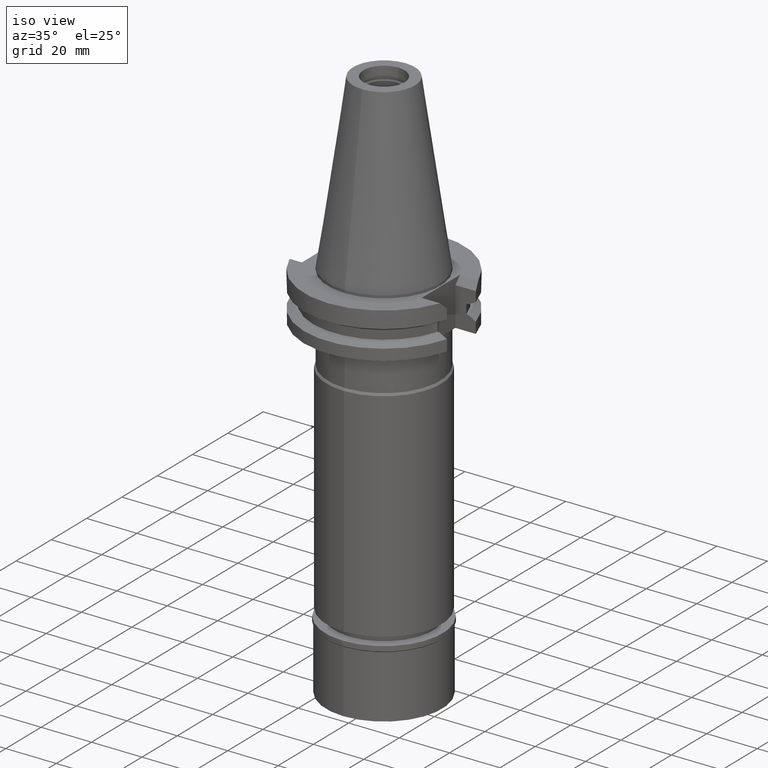
[diagram: clean part render]
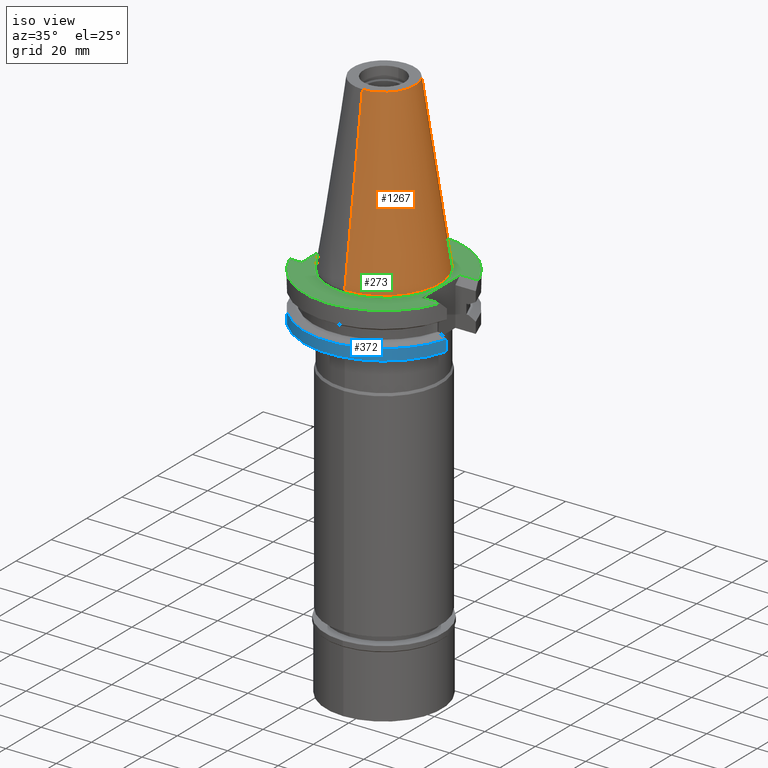
[diagram: same view with three faces highlighted in distinct colors, each labeled with its STEP entity id]
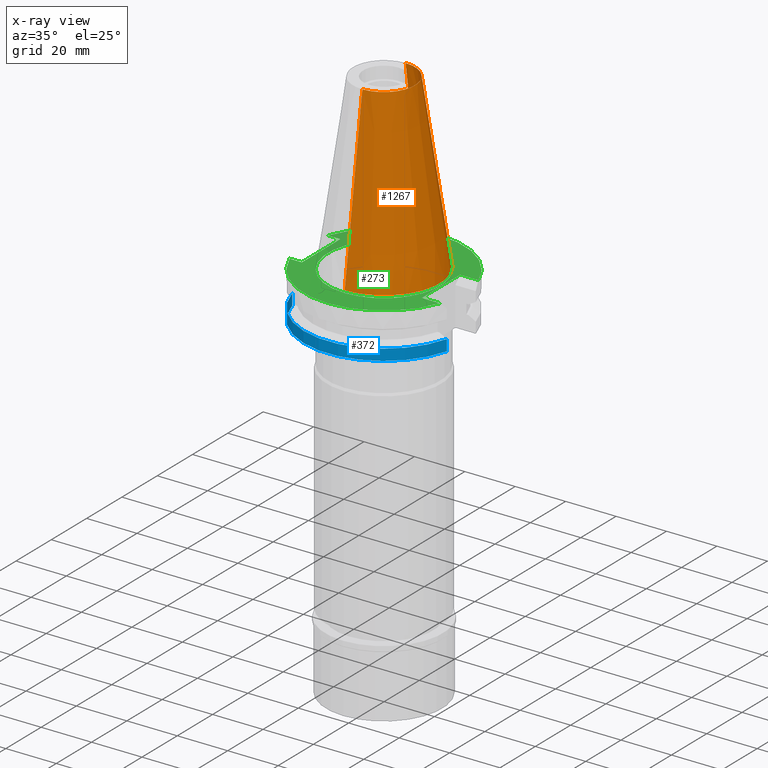
[diagram: x-ray of the same camera — body ghosted, the three highlighted faces saturated]
A machine part, iso view with three faces highlighted in distinct colors.
The next image is the same camera in x-ray (body ghosted, the three faces saturated) — at least one of them is partly hidden behind the body in this view.
Their STEP definitions:

[orange] entity #1267 — the highlighted conical surface has half-angle 8.297 deg.
#3 = VERTEX_POINT ( 'NONE', #1550 ) ;
#203 = VECTOR ( 'NONE', #1015, 1000.000000000000114 ) ;
#244 = ORIENTED_EDGE ( 'NONE', *, *, #849, .T. ) ;
#266 = VERTEX_POINT ( 'NONE', #2427 ) ;
#303 = AXIS2_PLACEMENT_3D ( 'NONE', #2983, #1539, #2955 ) ;
#368 = VERTEX_POINT ( 'NONE', #1780 ) ;
#409 = EDGE_CURVE ( 'NONE', #3031, #266, #2539, .T. ) ;
#419 = VECTOR ( 'NONE', #1032, 1000.000000000000114 ) ;
#610 = CONICAL_SURFACE ( 'NONE', #2451, 17.24843444035000317, 0.1448125860318199565 ) ;
#849 = EDGE_CURVE ( 'NONE', #3, #3031, #2288, .T. ) ;
#891 = EDGE_CURVE ( 'NONE', #3, #368, #2757, .T. ) ;
#934 = CARTESIAN_POINT ( 'NONE',  ( 0.0000000000000000000, 1.642557519355999895E-14, 34.12500000000000000 ) ) ;
#964 = EDGE_CURVE ( 'NONE', #368, #266, #1718, .T. ) ;
#975 = AXIS2_PLACEMENT_3D ( 'NONE', #3204, #984, #2242 ) ;
#984 = DIRECTION ( 'NONE',  ( 0.0000000000000000000, 0.0000000000000000000, -1.000000000000000000 ) ) ;
#1015 = DIRECTION ( 'NONE',  ( 0.0000000000000000000, 0.1443069799456937474, -0.9895329683941577192 ) ) ;
#1032 = DIRECTION ( 'NONE',  ( 0.0000000000000000000, -0.1443069799456937474, -0.9895329683941577192 ) ) ;
#1049 = ORIENTED_EDGE ( 'NONE', *, *, #409, .T. ) ;
#1061 = EDGE_LOOP ( 'NONE', ( #244, #1049, #2012, #2332 ) ) ;
#1267 = ADVANCED_FACE ( 'NONE', ( #2434 ), #610, .T. ) ;
#1269 = CARTESIAN_POINT ( 'NONE',  ( 0.0000000000000000000, -12.27186888070000137, 68.25000000000000000 ) ) ;
#1539 = DIRECTION ( 'NONE',  ( 0.0000000000000000000, 0.0000000000000000000, -1.000000000000000000 ) ) ;
#1550 = CARTESIAN_POINT ( 'NONE',  ( 0.0000000000000000000, 12.27186888070000137, 68.25000000000000000 ) ) ;
#1629 = DIRECTION ( 'NONE',  ( 0.0000000000000000000, 0.0000000000000000000, -1.000000000000000000 ) ) ;
#1718 = CIRCLE ( 'NONE', #975, 22.22500000000000142 ) ;
#1780 = CARTESIAN_POINT ( 'NONE',  ( 0.0000000000000000000, 22.22500000000000142, -1.989519660127999812E-13 ) ) ;
#2012 = ORIENTED_EDGE ( 'NONE', *, *, #964, .F. ) ;
#2036 = CARTESIAN_POINT ( 'NONE',  ( 0.0000000000000000000, 12.27186888070000137, 68.25000000000000000 ) ) ;
#2242 = DIRECTION ( 'NONE',  ( 0.0000000000000000000, 1.000000000000000000, 0.0000000000000000000 ) ) ;
#2288 = CIRCLE ( 'NONE', #303, 12.27186888070000137 ) ;
#2332 = ORIENTED_EDGE ( 'NONE', *, *, #891, .F. ) ;
#2427 = CARTESIAN_POINT ( 'NONE',  ( 0.0000000000000000000, -22.22500000000000142, -1.989519660127999812E-13 ) ) ;
#2434 = FACE_OUTER_BOUND ( 'NONE', #1061, .T. ) ;
#2451 = AXIS2_PLACEMENT_3D ( 'NONE', #934, #1629, #3147 ) ;
#2539 = LINE ( 'NONE', #1269, #419 ) ;
#2757 = LINE ( 'NONE', #2036, #203 ) ;
#2813 = CARTESIAN_POINT ( 'NONE',  ( 0.0000000000000000000, -12.27186888070000137, 68.25000000000000000 ) ) ;
#2955 = DIRECTION ( 'NONE',  ( 0.0000000000000000000, 1.000000000000000000, 0.0000000000000000000 ) ) ;
#2983 = CARTESIAN_POINT ( 'NONE',  ( 0.0000000000000000000, 1.642557519355999895E-14, 68.25000000000000000 ) ) ;
#3031 = VERTEX_POINT ( 'NONE', #2813 ) ;
#3147 = DIRECTION ( 'NONE',  ( 0.0000000000000000000, -1.000000000000000000, 0.0000000000000000000 ) ) ;
#3204 = CARTESIAN_POINT ( 'NONE',  ( 0.0000000000000000000, 1.642557519355999895E-14, -3.126388037344000570E-13 ) ) ;

[blue] entity #372 — the highlighted cylindrical surface (partial cylindrical patch) has radius 31.75 mm, axis along (0, 0, -1).
#20 = CARTESIAN_POINT ( 'NONE',  ( 30.67550146398999900, -8.190000606413999407, -14.65367218811000072 ) ) ;
#264 = CARTESIAN_POINT ( 'NONE',  ( 0.0000000000000000000, 2.188841840285999578E-14, 78.73250000000000171 ) ) ;
#269 = DIRECTION ( 'NONE',  ( -7.635527153158996472E-09, 2.859817695101998819E-08, 0.9999999999999995559 ) ) ;
#288 = ORIENTED_EDGE ( 'NONE', *, *, #430, .F. ) ;
#297 = DIRECTION ( 'NONE',  ( 0.0000000000000000000, 0.0000000000000000000, 1.000000000000000000 ) ) ;
#308 = CARTESIAN_POINT ( 'NONE',  ( 30.67550146398999900, -8.190000606413999407, -14.65367218811000072 ) ) ;
#363 = CARTESIAN_POINT ( 'NONE',  ( -30.67550162588999640, -8.189999999999999503, -19.05000000000000071 ) ) ;
#372 = ADVANCED_FACE ( 'NONE', ( #1981 ), #2735, .T. ) ;
#430 = EDGE_CURVE ( 'NONE', #439, #1507, #503, .T. ) ;
#431 = VECTOR ( 'NONE', #2039, 999.9999999999998863 ) ;
#439 = VERTEX_POINT ( 'NONE', #308 ) ;
#503 = LINE ( 'NONE', #20, #431 ) ;
#873 = CARTESIAN_POINT ( 'NONE',  ( 0.0000000000000000000, 1.055026073064999954E-14, -14.65366676908000088 ) ) ;
#965 = CARTESIAN_POINT ( 'NONE',  ( 30.67550162588999640, -8.189999999999999503, -19.05000000000000071 ) ) ;
#1194 = CARTESIAN_POINT ( 'NONE',  ( -30.67550162588999640, -8.189999999999999503, -19.05000000000000071 ) ) ;
#1253 = CARTESIAN_POINT ( 'NONE',  ( -30.67550165945999652, -8.189999874273000913, -14.65366564556999940 ) ) ;
#1256 = AXIS2_PLACEMENT_3D ( 'NONE', #873, #2576, #2824 ) ;
#1387 = EDGE_CURVE ( 'NONE', #1616, #1507, #1666, .T. ) ;
#1415 = CIRCLE ( 'NONE', #1256, 31.74999999999998579 ) ;
#1507 = VERTEX_POINT ( 'NONE', #965 ) ;
#1531 = VECTOR ( 'NONE', #269, 1000.000000000000000 ) ;
#1616 = VERTEX_POINT ( 'NONE', #363 ) ;
#1666 = CIRCLE ( 'NONE', #2137, 31.75000000000000000 ) ;
#1873 = ORIENTED_EDGE ( 'NONE', *, *, #2935, .F. ) ;
#1981 = FACE_OUTER_BOUND ( 'NONE', #2818, .T. ) ;
#1988 = VERTEX_POINT ( 'NONE', #1253 ) ;
#2039 = DIRECTION ( 'NONE',  ( 3.682727718256927807E-08, 1.379364761002972024E-07, -0.9999999999999898970 ) ) ;
#2132 = EDGE_CURVE ( 'NONE', #439, #1988, #1415, .T. ) ;
#2137 = AXIS2_PLACEMENT_3D ( 'NONE', #2531, #297, #3036 ) ;
#2499 = DIRECTION ( 'NONE',  ( 0.0000000000000000000, 0.0000000000000000000, -1.000000000000000000 ) ) ;
#2502 = ORIENTED_EDGE ( 'NONE', *, *, #2132, .T. ) ;
#2503 = LINE ( 'NONE', #1194, #1531 ) ;
#2513 = AXIS2_PLACEMENT_3D ( 'NONE', #264, #2499, #2774 ) ;
#2531 = CARTESIAN_POINT ( 'NONE',  ( 0.0000000000000000000, 2.188841840285999578E-14, -19.05000000000000071 ) ) ;
#2576 = DIRECTION ( 'NONE',  ( 0.0000000000000000000, 0.0000000000000000000, -1.000000000000000000 ) ) ;
#2735 = CYLINDRICAL_SURFACE ( 'NONE', #2513, 31.75000000000000000 ) ;
#2774 = DIRECTION ( 'NONE',  ( 0.0000000000000000000, -1.000000000000000000, 0.0000000000000000000 ) ) ;
#2818 = EDGE_LOOP ( 'NONE', ( #2502, #1873, #2937, #288 ) ) ;
#2824 = DIRECTION ( 'NONE',  ( 0.9661575315241073270, -0.2579527559055020958, 0.0000000000000000000 ) ) ;
#2935 = EDGE_CURVE ( 'NONE', #1616, #1988, #2503, .T. ) ;
#2937 = ORIENTED_EDGE ( 'NONE', *, *, #1387, .T. ) ;
#3036 = DIRECTION ( 'NONE',  ( 0.0000000000000000000, -1.000000000000000000, 0.0000000000000000000 ) ) ;

[green] entity #273 — the highlighted planar face has unit normal (0, 0, -1).
#104 = VERTEX_POINT ( 'NONE', #2474 ) ;
#126 = CARTESIAN_POINT ( 'NONE',  ( 22.57000000000000028, -10.89000000000000057, -1.000000000000000000 ) ) ;
#187 = FACE_BOUND ( 'NONE', #2034, .T. ) ;
#188 = CARTESIAN_POINT ( 'NONE',  ( 22.57000000000000028, 10.89000000000000057, -1.000000000000000000 ) ) ;
#201 = CARTESIAN_POINT ( 'NONE',  ( -24.98000000000000043, 10.89000000000000057, -1.000000000000000000 ) ) ;
#221 = LINE ( 'NONE', #188, #1520 ) ;
#273 = ADVANCED_FACE ( 'NONE', ( #925, #187 ), #1963, .F. ) ;
#290 = CARTESIAN_POINT ( 'NONE',  ( 22.57000000000000028, 10.89000000000000057, -1.000000000000000000 ) ) ;
#292 = EDGE_CURVE ( 'NONE', #591, #1734, #2908, .T. ) ;
#313 = CIRCLE ( 'NONE', #561, 31.75000000000000000 ) ;
#358 = DIRECTION ( 'NONE',  ( 1.000000000000000000, 5.877118954907999932E-14, 0.0000000000000000000 ) ) ;
#391 = DIRECTION ( 'NONE',  ( 0.0000000000000000000, 1.000000000000000000, 0.0000000000000000000 ) ) ;
#417 = ORIENTED_EDGE ( 'NONE', *, *, #3044, .F. ) ;
#445 = DIRECTION ( 'NONE',  ( -1.000000000000000000, 8.727782216946000332E-14, 0.0000000000000000000 ) ) ;
#453 = VERTEX_POINT ( 'NONE', #1542 ) ;
#548 = CARTESIAN_POINT ( 'NONE',  ( -24.98000000000000043, 10.89000000000000057, -1.000000000000000000 ) ) ;
#561 = AXIS2_PLACEMENT_3D ( 'NONE', #3054, #1110, #1122 ) ;
#567 = AXIS2_PLACEMENT_3D ( 'NONE', #2388, #2810, #391 ) ;
#591 = VERTEX_POINT ( 'NONE', #611 ) ;
#601 = AXIS2_PLACEMENT_3D ( 'NONE', #1347, #2106, #2837 ) ;
#611 = CARTESIAN_POINT ( 'NONE',  ( -24.98000000000000043, 10.89000000000000057, -1.000000000000000000 ) ) ;
#623 = EDGE_CURVE ( 'NONE', #1044, #3113, #2806, .T. ) ;
#658 = EDGE_CURVE ( 'NONE', #1889, #2146, #2284, .T. ) ;
#700 = EDGE_CURVE ( 'NONE', #2506, #453, #2131, .T. ) ;
#701 = EDGE_LOOP ( 'NONE', ( #1236, #1078, #417, #2967, #1840, #2948, #2104, #2998 ) ) ;
#777 = AXIS2_PLACEMENT_3D ( 'NONE', #1175, #1227, #3138 ) ;
#802 = VECTOR ( 'NONE', #358, 1000.000000000000000 ) ;
#857 = CARTESIAN_POINT ( 'NONE',  ( 0.0000000000000000000, 22.22500000000000142, -1.000000000000000000 ) ) ;
#861 = EDGE_CURVE ( 'NONE', #1196, #453, #1754, .T. ) ;
#878 = VECTOR ( 'NONE', #445, 1000.000000000000000 ) ;
#925 = FACE_OUTER_BOUND ( 'NONE', #701, .T. ) ;
#1044 = VERTEX_POINT ( 'NONE', #1080 ) ;
#1078 = ORIENTED_EDGE ( 'NONE', *, *, #700, .F. ) ;
#1080 = CARTESIAN_POINT ( 'NONE',  ( 22.57000000000000028, -10.89000000000000057, -1.000000000000000000 ) ) ;
#1110 = DIRECTION ( 'NONE',  ( 0.0000000000000000000, 0.0000000000000000000, -1.000000000000000000 ) ) ;
#1122 = DIRECTION ( 'NONE',  ( 0.0000000000000000000, -1.000000000000000000, 0.0000000000000000000 ) ) ;
#1133 = DIRECTION ( 'NONE',  ( 0.0000000000000000000, 0.0000000000000000000, -1.000000000000000000 ) ) ;
#1148 = CIRCLE ( 'NONE', #567, 22.22500000000000142 ) ;
#1175 = CARTESIAN_POINT ( 'NONE',  ( 0.0000000000000000000, 1.212400331155999925E-14, -1.000000000000000000 ) ) ;
#1187 = CARTESIAN_POINT ( 'NONE',  ( 0.0000000000000000000, 2.188841840285999578E-14, -1.000000000000000000 ) ) ;
#1196 = VERTEX_POINT ( 'NONE', #2873 ) ;
#1227 = DIRECTION ( 'NONE',  ( 0.0000000000000000000, 0.0000000000000000000, -1.000000000000000000 ) ) ;
#1228 = CARTESIAN_POINT ( 'NONE',  ( -24.98000000000000043, -10.89000000000000057, -1.000000000000000000 ) ) ;
#1236 = ORIENTED_EDGE ( 'NONE', *, *, #861, .T. ) ;
#1279 = DIRECTION ( 'NONE',  ( 1.000000000000000000, -5.779166972325999752E-14, 0.0000000000000000000 ) ) ;
#1287 = CARTESIAN_POINT ( 'NONE',  ( 29.82399034335000110, -10.89000000000000057, -1.000000000001000089 ) ) ;
#1347 = CARTESIAN_POINT ( 'NONE',  ( 0.0000000000000000000, 2.188841840285999578E-14, -1.000000000000000000 ) ) ;
#1431 = CARTESIAN_POINT ( 'NONE',  ( -24.98000000000000043, -10.89000000000000057, -1.000000000000000000 ) ) ;
#1520 = VECTOR ( 'NONE', #3175, 1000.000000000000000 ) ;
#1542 = CARTESIAN_POINT ( 'NONE',  ( 29.82399034335000110, 10.89000000000000057, -1.000000000001000089 ) ) ;
#1646 = DIRECTION ( 'NONE',  ( 0.0000000000000000000, 1.000000000000000000, 0.0000000000000000000 ) ) ;
#1649 = EDGE_CURVE ( 'NONE', #3113, #104, #313, .T. ) ;
#1734 = VERTEX_POINT ( 'NONE', #1228 ) ;
#1754 = LINE ( 'NONE', #290, #1974 ) ;
#1840 = ORIENTED_EDGE ( 'NONE', *, *, #1910, .T. ) ;
#1854 = EDGE_CURVE ( 'NONE', #1196, #1044, #221, .T. ) ;
#1889 = VERTEX_POINT ( 'NONE', #2409 ) ;
#1910 = EDGE_CURVE ( 'NONE', #1734, #104, #2677, .T. ) ;
#1963 = PLANE ( 'NONE',  #777 ) ;
#1974 = VECTOR ( 'NONE', #1279, 1000.000000000000000 ) ;
#1990 = ORIENTED_EDGE ( 'NONE', *, *, #2507, .F. ) ;
#2013 = ORIENTED_EDGE ( 'NONE', *, *, #658, .F. ) ;
#2034 = EDGE_LOOP ( 'NONE', ( #1990, #2013 ) ) ;
#2094 = LINE ( 'NONE', #548, #2097 ) ;
#2097 = VECTOR ( 'NONE', #2581, 1000.000000000000000 ) ;
#2104 = ORIENTED_EDGE ( 'NONE', *, *, #623, .F. ) ;
#2106 = DIRECTION ( 'NONE',  ( 0.0000000000000000000, 0.0000000000000000000, 1.000000000000000000 ) ) ;
#2131 = CIRCLE ( 'NONE', #2538, 31.75000000000000000 ) ;
#2146 = VERTEX_POINT ( 'NONE', #857 ) ;
#2195 = DIRECTION ( 'NONE',  ( 0.0000000000000000000, -1.000000000000000000, 0.0000000000000000000 ) ) ;
#2259 = VECTOR ( 'NONE', #2195, 1000.000000000000000 ) ;
#2284 = CIRCLE ( 'NONE', #601, 22.22500000000000142 ) ;
#2388 = CARTESIAN_POINT ( 'NONE',  ( 0.0000000000000000000, 2.188841840285999578E-14, -1.000000000000000000 ) ) ;
#2409 = CARTESIAN_POINT ( 'NONE',  ( 0.0000000000000000000, -22.22500000000000142, -1.000000000000000000 ) ) ;
#2474 = CARTESIAN_POINT ( 'NONE',  ( -29.82399034335000110, -10.89000000000000057, -1.000000000001000089 ) ) ;
#2506 = VERTEX_POINT ( 'NONE', #2627 ) ;
#2507 = EDGE_CURVE ( 'NONE', #2146, #1889, #1148, .T. ) ;
#2538 = AXIS2_PLACEMENT_3D ( 'NONE', #1187, #1133, #1646 ) ;
#2581 = DIRECTION ( 'NONE',  ( -1.000000000000000000, -8.727782216946000332E-14, 0.0000000000000000000 ) ) ;
#2627 = CARTESIAN_POINT ( 'NONE',  ( -29.82399034335000110, 10.89000000000000057, -1.000000000000000000 ) ) ;
#2677 = LINE ( 'NONE', #1431, #878 ) ;
#2806 = LINE ( 'NONE', #126, #802 ) ;
#2810 = DIRECTION ( 'NONE',  ( 0.0000000000000000000, 0.0000000000000000000, 1.000000000000000000 ) ) ;
#2837 = DIRECTION ( 'NONE',  ( 0.0000000000000000000, -1.000000000000000000, 0.0000000000000000000 ) ) ;
#2873 = CARTESIAN_POINT ( 'NONE',  ( 22.57000000000000028, 10.89000000000000057, -1.000000000000000000 ) ) ;
#2908 = LINE ( 'NONE', #201, #2259 ) ;
#2948 = ORIENTED_EDGE ( 'NONE', *, *, #1649, .F. ) ;
#2967 = ORIENTED_EDGE ( 'NONE', *, *, #292, .T. ) ;
#2998 = ORIENTED_EDGE ( 'NONE', *, *, #1854, .F. ) ;
#3044 = EDGE_CURVE ( 'NONE', #591, #2506, #2094, .T. ) ;
#3054 = CARTESIAN_POINT ( 'NONE',  ( 0.0000000000000000000, 2.188841840285999578E-14, -1.000000000000000000 ) ) ;
#3113 = VERTEX_POINT ( 'NONE', #1287 ) ;
#3138 = DIRECTION ( 'NONE',  ( 0.0000000000000000000, -1.000000000000000000, 0.0000000000000000000 ) ) ;
#3175 = DIRECTION ( 'NONE',  ( 0.0000000000000000000, -1.000000000000000000, 0.0000000000000000000 ) ) ;